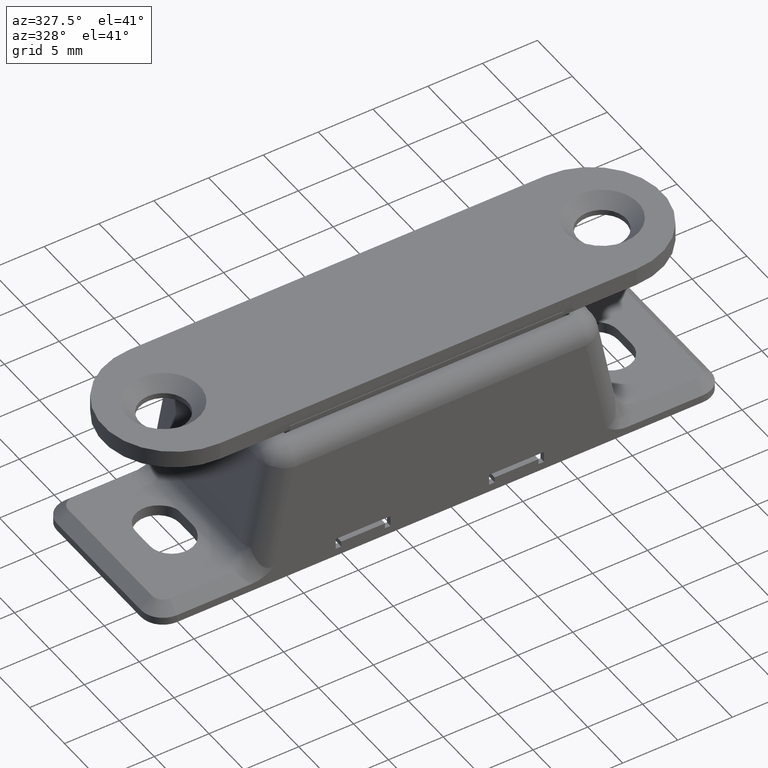
[diagram: clean part render]
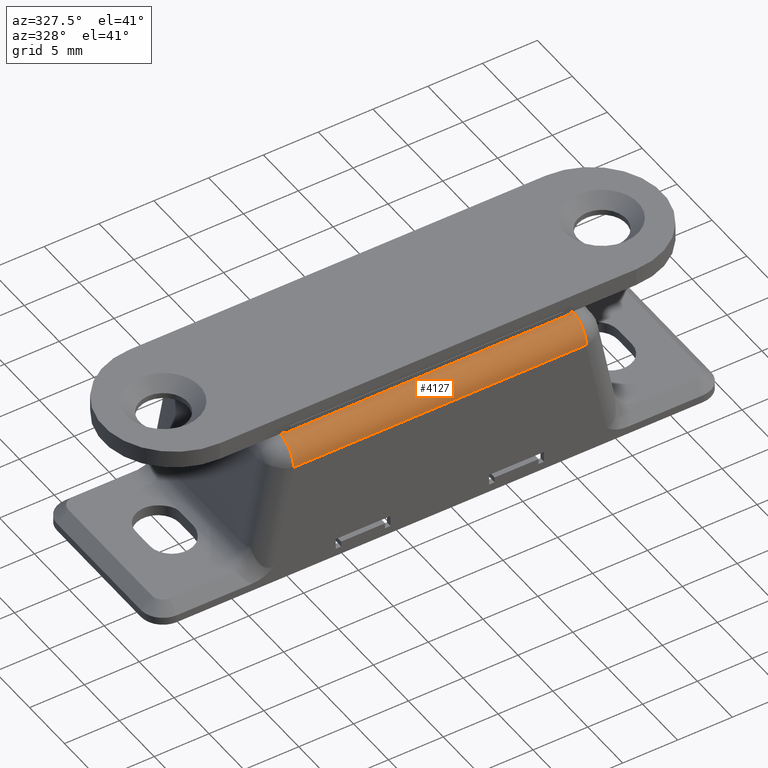
[diagram: same view with one face highlighted and labeled with its STEP entity id]
A machine part, auxiliary view. The second image highlights one B-rep face of the part: STEP entity #4127.
In plain terms, the highlighted cylindrical surface (edge-blend (fillet) strip) has radius 2 mm, axis along (-1, 0, 0).
Its self-contained STEP definition (entity closure, byte-faithful):
#187=CYLINDRICAL_SURFACE('',#4428,2.);
#217=CIRCLE('',#4308,2.);
#219=CIRCLE('',#4312,2.);
#261=CIRCLE('',#4420,2.);
#266=CIRCLE('',#4429,2.);
#403=FACE_OUTER_BOUND('',#642,.T.);
#642=EDGE_LOOP('',(#3138,#3139,#3140,#3141,#3142,#3143,#3144,#3145));
#878=LINE('',#5948,#1318);
#894=LINE('',#5990,#1334);
#895=LINE('',#5992,#1335);
#970=LINE('',#6615,#1410);
#1318=VECTOR('',#4774,26.);
#1334=VECTOR('',#4812,0.351327228364999);
#1335=VECTOR('',#4813,0.351327228364999);
#1410=VECTOR('',#5102,26.70265445673);
#1734=VERTEX_POINT('',#5934);
#1735=VERTEX_POINT('',#5935);
#1740=VERTEX_POINT('',#5947);
#1742=VERTEX_POINT('',#5953);
#1755=VERTEX_POINT('',#5988);
#1756=VERTEX_POINT('',#5991);
#1843=VERTEX_POINT('',#6598);
#1847=VERTEX_POINT('',#6614);
#2148=EDGE_CURVE('',#1734,#1735,#217,.T.);
#2154=EDGE_CURVE('',#1740,#1734,#878,.T.);
#2157=EDGE_CURVE('',#1742,#1740,#219,.T.);
#2176=EDGE_CURVE('',#1735,#1755,#894,.T.);
#2177=EDGE_CURVE('',#1756,#1742,#895,.T.);
#2320=EDGE_CURVE('',#1843,#1755,#261,.T.);
#2327=EDGE_CURVE('',#1843,#1847,#970,.T.);
#2328=EDGE_CURVE('',#1756,#1847,#266,.T.);
#3138=ORIENTED_EDGE('',*,*,#2148,.T.);
#3139=ORIENTED_EDGE('',*,*,#2176,.T.);
#3140=ORIENTED_EDGE('',*,*,#2320,.F.);
#3141=ORIENTED_EDGE('',*,*,#2327,.T.);
#3142=ORIENTED_EDGE('',*,*,#2328,.F.);
#3143=ORIENTED_EDGE('',*,*,#2177,.T.);
#3144=ORIENTED_EDGE('',*,*,#2157,.T.);
#3145=ORIENTED_EDGE('',*,*,#2154,.T.);
#4127=ADVANCED_FACE('',(#403),#187,.T.);
#4308=AXIS2_PLACEMENT_3D('',#5936,#4764,#4765);
#4312=AXIS2_PLACEMENT_3D('',#5954,#4779,#4780);
#4420=AXIS2_PLACEMENT_3D('',#6600,#5082,#5083);
#4428=AXIS2_PLACEMENT_3D('',#6613,#5100,#5101);
#4429=AXIS2_PLACEMENT_3D('',#6616,#5103,#5104);
#4764=DIRECTION('center_axis',(-1.,0.,0.));
#4765=DIRECTION('ref_axis',(0.,-0.707106781186548,0.707106781186547));
#4774=DIRECTION('',(-1.,0.,0.));
#4779=DIRECTION('center_axis',(1.,1.38777878078144E-15,0.));
#4780=DIRECTION('ref_axis',(9.81307786677356E-16,-0.707106781186548,0.707106781186547));
#4812=DIRECTION('',(-1.,0.,0.));
#4813=DIRECTION('',(-1.,0.,0.));
#5082=DIRECTION('center_axis',(-1.,0.,0.));
#5083=DIRECTION('ref_axis',(0.,-0.707106781186548,0.707106781186547));
#5100=DIRECTION('center_axis',(-1.,0.,0.));
#5101=DIRECTION('ref_axis',(0.,-0.707106781186548,0.707106781186547));
#5102=DIRECTION('',(1.,0.,0.));
#5103=DIRECTION('center_axis',(1.,0.,0.));
#5104=DIRECTION('ref_axis',(0.,-0.707106781186548,0.707106781186547));
#5934=CARTESIAN_POINT('',(-13.,-6.2,12.7899748742132));
#5935=CARTESIAN_POINT('',(-13.,-6.,12.8));
#5936=CARTESIAN_POINT('Origin',(-13.,-6.,10.8));
#5947=CARTESIAN_POINT('',(13.,-6.2,12.7899748742132));
#5948=CARTESIAN_POINT('',(-7.5,-6.2,12.7899748742132));
#5953=CARTESIAN_POINT('',(13.,-6.,12.8));
#5954=CARTESIAN_POINT('Origin',(13.,-6.,10.8));
#5988=CARTESIAN_POINT('',(-13.351327228365,-6.,12.8));
#5990=CARTESIAN_POINT('',(-7.5,-6.,12.8));
#5991=CARTESIAN_POINT('',(13.351327228365,-6.,12.8));
#5992=CARTESIAN_POINT('',(-7.5,-6.,12.8));
#6598=CARTESIAN_POINT('',(-13.351327228365,-8.,10.8));
#6600=CARTESIAN_POINT('Origin',(-13.351327228365,-6.,10.8));
#6613=CARTESIAN_POINT('Origin',(-7.5,-6.,10.8));
#6614=CARTESIAN_POINT('',(13.351327228365,-8.,10.8));
#6615=CARTESIAN_POINT('',(-7.5,-8.,10.8));
#6616=CARTESIAN_POINT('Origin',(13.351327228365,-6.,10.8));